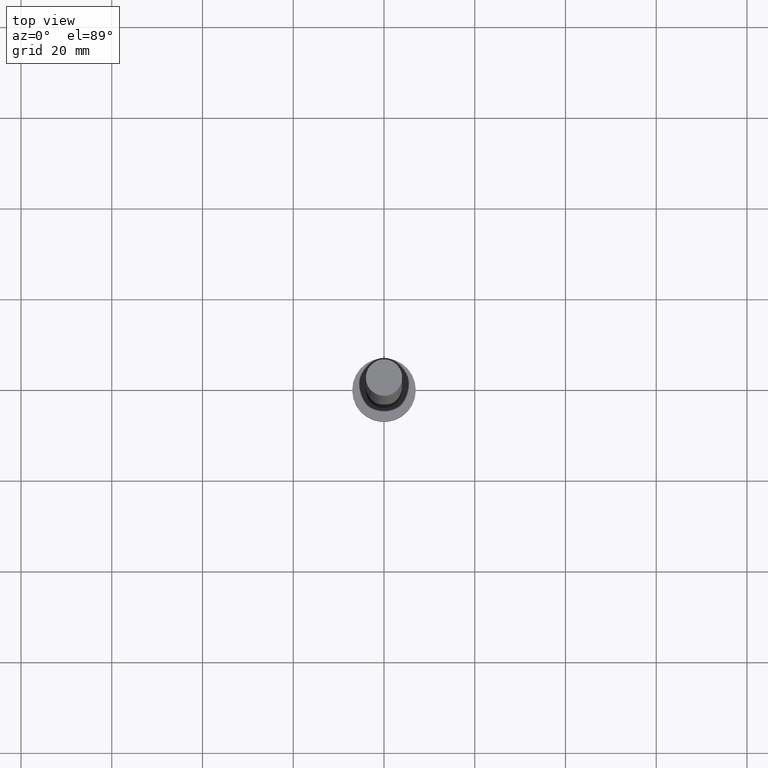
[diagram: clean part render]
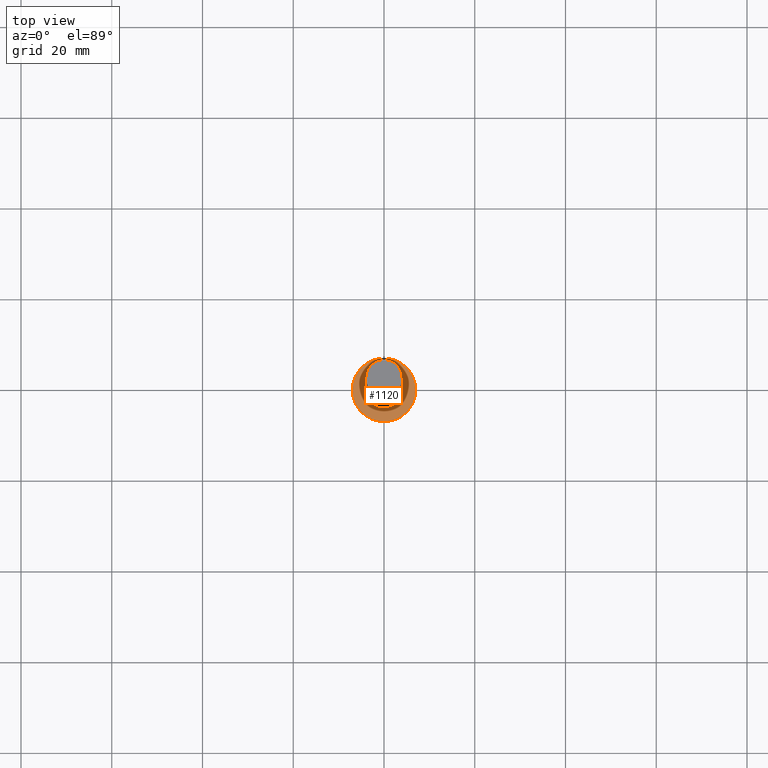
[diagram: same view with one face highlighted and labeled with its STEP entity id]
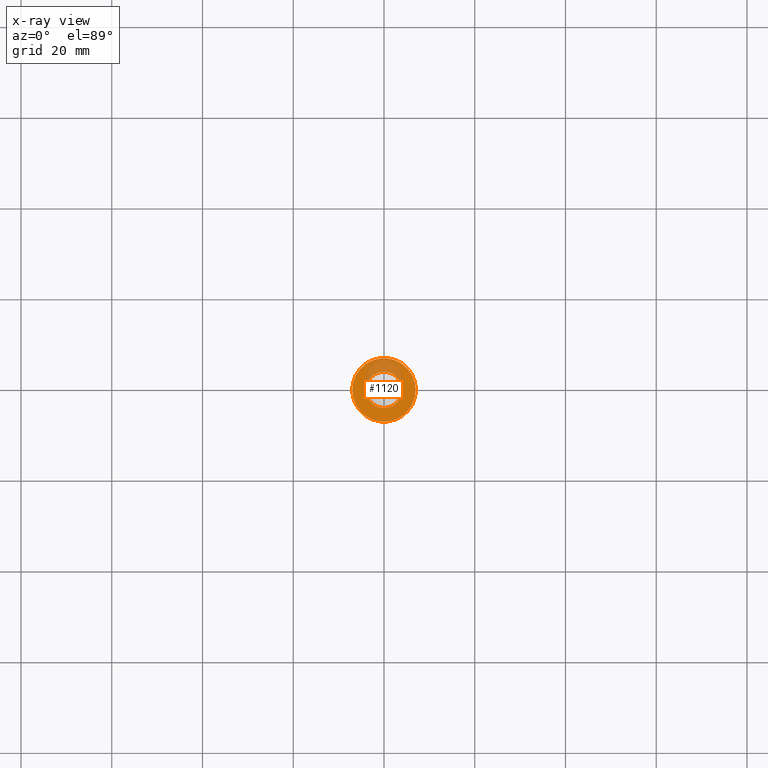
[diagram: x-ray of the same camera — body ghosted, the highlighted face saturated]
A machine part, top view. The second image highlights one B-rep face of the part: STEP entity #1120.
The next image is the same camera in x-ray: the body ghosted, the highlighted face saturated — about 21% of this face is hidden behind the body in this view.
In plain terms, the highlighted planar face has unit normal (0, 0, 1).
Its self-contained STEP definition (entity closure, byte-faithful):
#16 = EDGE_CURVE ( 'NONE', #1189, #1573, #234, .T. ) ;
#66 = CARTESIAN_POINT ( 'NONE',  ( 4.000000000000000000, 4.898587196589412829E-16, 5.000000000000000000 ) ) ;
#105 = CARTESIAN_POINT ( 'NONE',  ( 0.000000000000000000, 0.000000000000000000, 5.000000000000000000 ) ) ;
#208 = AXIS2_PLACEMENT_3D ( 'NONE', #302, #806, #1326 ) ;
#221 = CARTESIAN_POINT ( 'NONE',  ( -4.000000000000000000, 0.000000000000000000, 5.000000000000000000 ) ) ;
#234 = CIRCLE ( 'NONE', #1305, 7.000000000000000000 ) ;
#293 = DIRECTION ( 'NONE',  ( 1.000000000000000000, 0.000000000000000000, 0.000000000000000000 ) ) ;
#302 = CARTESIAN_POINT ( 'NONE',  ( 0.000000000000000000, 0.000000000000000000, 5.000000000000000000 ) ) ;
#388 = AXIS2_PLACEMENT_3D ( 'NONE', #105, #1382, #1545 ) ;
#401 = ORIENTED_EDGE ( 'NONE', *, *, #16, .T. ) ;
#421 = EDGE_LOOP ( 'NONE', ( #611, #401 ) ) ;
#472 = CARTESIAN_POINT ( 'NONE',  ( 0.000000000000000000, 0.000000000000000000, 5.000000000000000000 ) ) ;
#493 = EDGE_CURVE ( 'NONE', #1573, #1189, #496, .T. ) ;
#496 = CIRCLE ( 'NONE', #208, 7.000000000000000000 ) ;
#611 = ORIENTED_EDGE ( 'NONE', *, *, #493, .T. ) ;
#627 = CARTESIAN_POINT ( 'NONE',  ( -7.000000000000000000, 0.000000000000000000, 5.000000000000000000 ) ) ;
#676 = EDGE_CURVE ( 'NONE', #931, #1173, #1172, .T. ) ;
#704 = EDGE_CURVE ( 'NONE', #1173, #931, #1259, .T. ) ;
#782 = CARTESIAN_POINT ( 'NONE',  ( 0.000000000000000000, 0.000000000000000000, 5.000000000000000000 ) ) ;
#806 = DIRECTION ( 'NONE',  ( 0.000000000000000000, 0.000000000000000000, 1.000000000000000000 ) ) ;
#851 = DIRECTION ( 'NONE',  ( 0.000000000000000000, 0.000000000000000000, 1.000000000000000000 ) ) ;
#881 = FACE_BOUND ( 'NONE', #1290, .T. ) ;
#931 = VERTEX_POINT ( 'NONE', #221 ) ;
#937 = DIRECTION ( 'NONE',  ( 1.000000000000000000, 0.000000000000000000, -0.000000000000000000 ) ) ;
#1120 = ADVANCED_FACE ( 'NONE', ( #881, #1393 ), #1457, .T. ) ;
#1172 = CIRCLE ( 'NONE', #1384, 4.000000000000000000 ) ;
#1173 = VERTEX_POINT ( 'NONE', #66 ) ;
#1189 = VERTEX_POINT ( 'NONE', #1473 ) ;
#1259 = CIRCLE ( 'NONE', #388, 4.000000000000000000 ) ;
#1290 = EDGE_LOOP ( 'NONE', ( #1619, #1467 ) ) ;
#1305 = AXIS2_PLACEMENT_3D ( 'NONE', #1470, #1444, #293 ) ;
#1326 = DIRECTION ( 'NONE',  ( 1.000000000000000000, 0.000000000000000000, 0.000000000000000000 ) ) ;
#1373 = DIRECTION ( 'NONE',  ( 1.000000000000000000, 0.000000000000000000, 0.000000000000000000 ) ) ;
#1382 = DIRECTION ( 'NONE',  ( 0.000000000000000000, 0.000000000000000000, 1.000000000000000000 ) ) ;
#1384 = AXIS2_PLACEMENT_3D ( 'NONE', #472, #851, #1373 ) ;
#1393 = FACE_OUTER_BOUND ( 'NONE', #421, .T. ) ;
#1444 = DIRECTION ( 'NONE',  ( 0.000000000000000000, 0.000000000000000000, 1.000000000000000000 ) ) ;
#1451 = DIRECTION ( 'NONE',  ( 0.000000000000000000, 0.000000000000000000, 1.000000000000000000 ) ) ;
#1457 = PLANE ( 'NONE',  #1478 ) ;
#1467 = ORIENTED_EDGE ( 'NONE', *, *, #704, .F. ) ;
#1470 = CARTESIAN_POINT ( 'NONE',  ( 0.000000000000000000, 0.000000000000000000, 5.000000000000000000 ) ) ;
#1473 = CARTESIAN_POINT ( 'NONE',  ( 7.000000000000000000, 8.572527594031473190E-16, 5.000000000000000000 ) ) ;
#1478 = AXIS2_PLACEMENT_3D ( 'NONE', #782, #1451, #937 ) ;
#1545 = DIRECTION ( 'NONE',  ( 1.000000000000000000, 0.000000000000000000, 0.000000000000000000 ) ) ;
#1573 = VERTEX_POINT ( 'NONE', #627 ) ;
#1619 = ORIENTED_EDGE ( 'NONE', *, *, #676, .F. ) ;